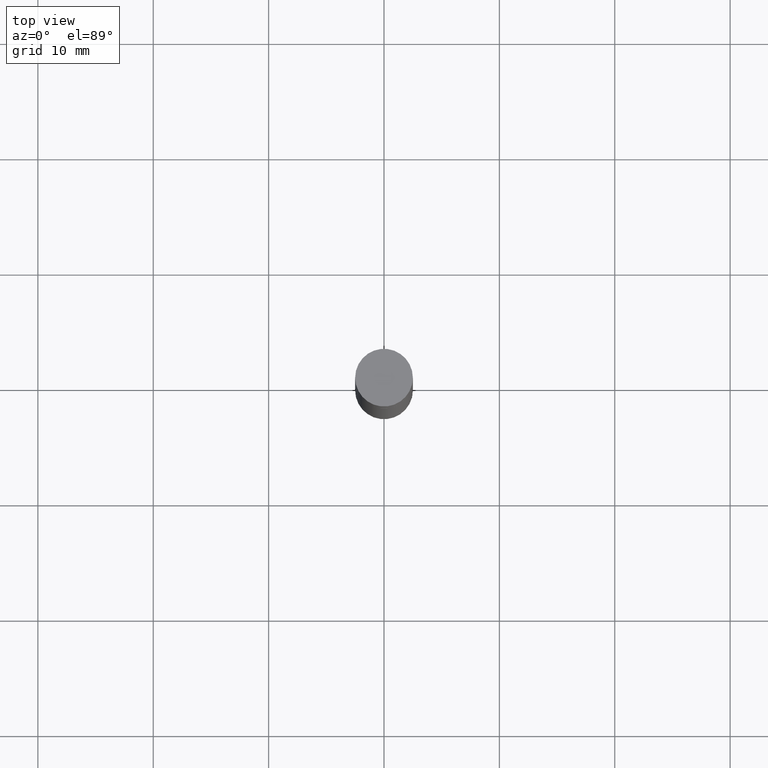
[diagram: clean part render]
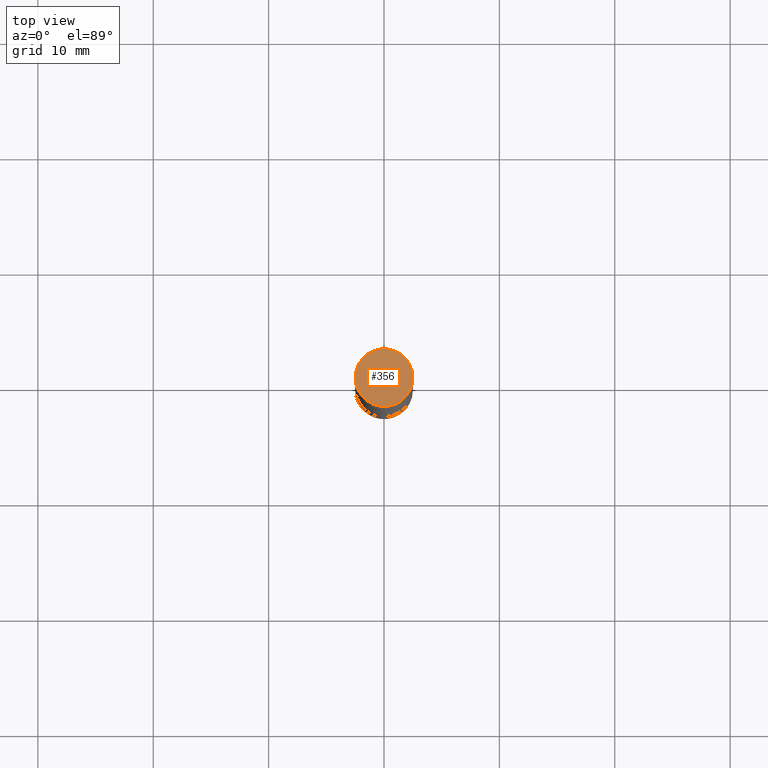
[diagram: same view with one face highlighted and labeled with its STEP entity id]
A machine part, top view. The second image highlights one B-rep face of the part: STEP entity #356.
In plain terms, the highlighted planar face has unit normal (0, 0, 1).
Its self-contained STEP definition (entity closure, byte-faithful):
#101 = VERTEX_POINT ( 'NONE', #317 ) ;
#135 = AXIS2_PLACEMENT_3D ( 'NONE', #321, #459, #254 ) ;
#146 = DIRECTION ( 'NONE',  ( -1.000000000000000000, 6.982962677686265922E-15, -9.839502134516470631E-33 ) ) ;
#163 = CIRCLE ( 'NONE', #135, 0.09844999999999999585 ) ;
#205 = CARTESIAN_POINT ( 'NONE',  ( 6.065496279980994755E-29, 1.747461519580534218E-18, 5.463695987328526437E-16 ) ) ;
#254 = DIRECTION ( 'NONE',  ( 1.000000000000000000, -6.982962677686266711E-15, 0.000000000000000000 ) ) ;
#256 = DIRECTION ( 'NONE',  ( 2.445468806185136597E-29, 3.492890411551752677E-15, 1.000000000000000000 ) ) ;
#274 = CIRCLE ( 'NONE', #629, 0.09844999999999999585 ) ;
#313 = PLANE ( 'NONE',  #365 ) ;
#317 = CARTESIAN_POINT ( 'NONE',  ( 0.09844999999999999585, -6.857252140986324187E-16, 5.463695987328526437E-16 ) ) ;
#321 = CARTESIAN_POINT ( 'NONE',  ( 6.065496279980994755E-29, 1.747461519580534218E-18, 5.463695987328526437E-16 ) ) ;
#333 = VERTEX_POINT ( 'NONE', #666 ) ;
#356 = ADVANCED_FACE ( 'NONE', ( #418 ), #313, .T. ) ;
#365 = AXIS2_PLACEMENT_3D ( 'NONE', #680, #626, #146 ) ;
#367 = EDGE_CURVE ( 'NONE', #101, #333, #274, .T. ) ;
#418 = FACE_OUTER_BOUND ( 'NONE', #443, .T. ) ;
#430 = EDGE_CURVE ( 'NONE', #333, #101, #163, .T. ) ;
#443 = EDGE_LOOP ( 'NONE', ( #560, #611 ) ) ;
#459 = DIRECTION ( 'NONE',  ( 2.445468806185136597E-29, 3.492890411551752677E-15, 1.000000000000000000 ) ) ;
#560 = ORIENTED_EDGE ( 'NONE', *, *, #367, .T. ) ;
#611 = ORIENTED_EDGE ( 'NONE', *, *, #430, .T. ) ;
#626 = DIRECTION ( 'NONE',  ( 2.438088387897959769E-29, 3.492890411551753071E-15, 1.000000000000000000 ) ) ;
#629 = AXIS2_PLACEMENT_3D ( 'NONE', #205, #256, #675 ) ;
#666 = CARTESIAN_POINT ( 'NONE',  ( -0.09844999999999999585, -1.041198811377375779E-17, 5.463695987328551089E-16 ) ) ;
#675 = DIRECTION ( 'NONE',  ( 1.000000000000000000, -6.982962677686266711E-15, 0.000000000000000000 ) ) ;
#680 = CARTESIAN_POINT ( 'NONE',  ( 6.874726756182734996E-16, 0.09845000000000000973, 5.463695987328526437E-16 ) ) ;